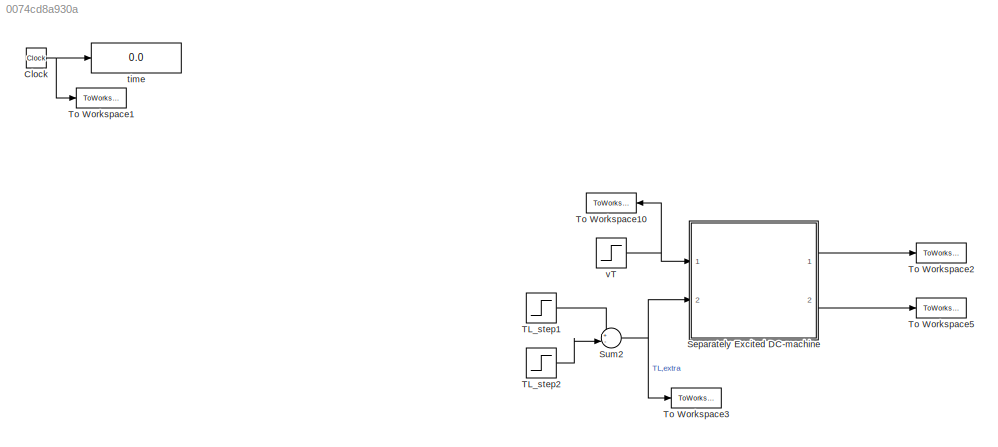
MODEL mdl_0074cd8a930a
KIND model
CONFIG AbsTol = auto
CONFIG EnableMultiTasking = on
CONFIG FixedStep = auto
CONFIG MaxStep = 1e-3
CONFIG MinStep = auto
CONFIG RelTol = 1e-6
CONFIG SampleTimeConstraint = Unconstrained
CONFIG SolverName = ode45
CONFIG StartTime = 0.0
CONFIG StopTime = 10.0
BLOCK [Clock] Clock
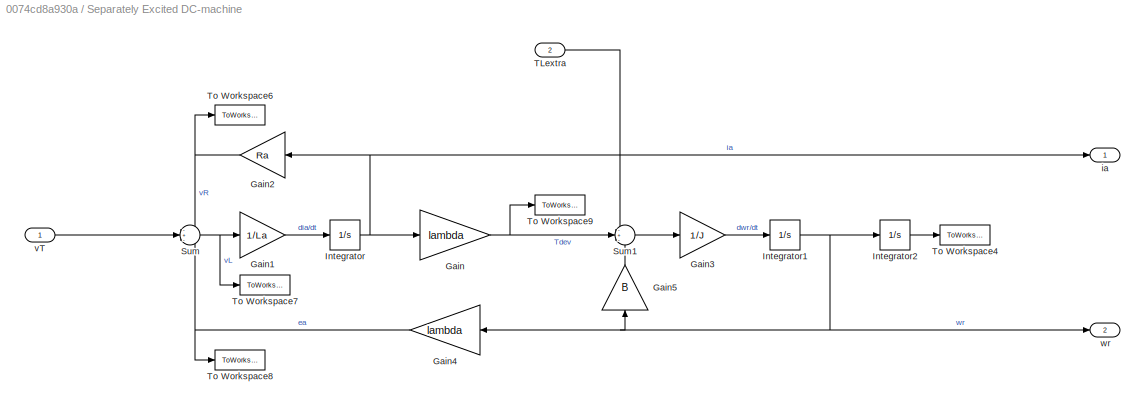
BLOCK [SubSystem] Separately Excited DC-machine
  Ports = [2, 2]
  RequestExecContextInheritance = off
BLOCK [Gain] Separately Excited DC-machine/Gain
  Gain = lambda
BLOCK [Gain] Separately Excited DC-machine/Gain1
  Gain = 1/La
BLOCK [Gain] Separately Excited DC-machine/Gain2
  Gain = Ra
  NameLocation = top
BLOCK [Gain] Separately Excited DC-machine/Gain3
  Gain = 1/J
BLOCK [Gain] Separately Excited DC-machine/Gain4
  Gain = lambda
  NameLocation = top
BLOCK [Gain] Separately Excited DC-machine/Gain5
  Gain = B
  NameLocation = right
BLOCK [Integrator] Separately Excited DC-machine/Integrator
  Ports = [1, 1]
BLOCK [Integrator] Separately Excited DC-machine/Integrator1
  Ports = [1, 1]
BLOCK [Integrator] Separately Excited DC-machine/Integrator2
  Ports = [1, 1]
BLOCK [Sum] Separately Excited DC-machine/Sum
  Inputs = -+-
  Ports = [3, 1]
BLOCK [Sum] Separately Excited DC-machine/Sum1
  Inputs = -+-
  Ports = [3, 1]
BLOCK [Inport] Separately Excited DC-machine/TLextra
  Port = 2
BLOCK [ToWorkspace] Separately Excited DC-machine/To Workspace4
  MaxDataPoints = inf
  Ports = [1]
  SampleTime = -1
  VariableName = thetar
BLOCK [ToWorkspace] Separately Excited DC-machine/To Workspace6
  MaxDataPoints = inf
  Ports = [1]
  SampleTime = -1
  VariableName = vR
BLOCK [ToWorkspace] Separately Excited DC-machine/To Workspace7
  MaxDataPoints = inf
  Ports = [1]
  SampleTime = -1
  VariableName = vL
BLOCK [ToWorkspace] Separately Excited DC-machine/To Workspace8
  MaxDataPoints = inf
  Ports = [1]
  SampleTime = -1
  VariableName = ea
BLOCK [ToWorkspace] Separately Excited DC-machine/To Workspace9
  MaxDataPoints = inf
  Ports = [1]
  SampleTime = -1
  VariableName = Te
BLOCK [Outport] Separately Excited DC-machine/ia
  VectorParamsAs1DForOutWhenUnconnected = off
BLOCK [Inport] Separately Excited DC-machine/vT
BLOCK [Outport] Separately Excited DC-machine/wr
  Port = 2
  VectorParamsAs1DForOutWhenUnconnected = off
BLOCK [Sum] Sum2
  Inputs = +-|
  Ports = [2, 1]
BLOCK [Step] TL_step1
  After = TL_step
  SampleTime = 0
  Time = TL_steptime1
BLOCK [Step] TL_step2
  After = TL_step*2
  SampleTime = 0
  Time = TL_steptime2
BLOCK [ToWorkspace] To Workspace1
  MaxDataPoints = inf
  Ports = [1]
  SampleTime = -1
  VariableName = time
BLOCK [ToWorkspace] To Workspace10
  MaxDataPoints = inf
  NameLocation = top
  Ports = [1]
  SampleTime = -1
  VariableName = vT
BLOCK [ToWorkspace] To Workspace2
  MaxDataPoints = inf
  Ports = [1]
  SampleTime = -1
  VariableName = ia
BLOCK [ToWorkspace] To Workspace3
  MaxDataPoints = inf
  NameLocation = top
  Ports = [1]
  SampleTime = -1
  VariableName = TLextra
BLOCK [ToWorkspace] To Workspace5
  MaxDataPoints = inf
  Ports = [1]
  SampleTime = -1
  VariableName = wr
BLOCK [Display] time
  Decimation = 1
  Ports = [1]
BLOCK [Step] vT
  After = vT_step
  SampleTime = 0
  Time = vT_steptime
NET Clock:1 -> To Workspace1:1, time:1
LINE Separately Excited DC-machine/Gain1:1 -> Separately Excited DC-machine/Integrator:1
NET Separately Excited DC-machine/Gain2:1 -> Separately Excited DC-machine/Sum:1, Separately Excited DC-machine/To Workspace6:1
LINE Separately Excited DC-machine/Gain3:1 -> Separately Excited DC-machine/Integrator1:1
NET Separately Excited DC-machine/Gain4:1 -> Separately Excited DC-machine/Sum:3, Separately Excited DC-machine/To Workspace8:1
LINE Separately Excited DC-machine/Gain5:1 -> Separately Excited DC-machine/Sum1:3
NET Separately Excited DC-machine/Gain:1 -> Separately Excited DC-machine/Sum1:2, Separately Excited DC-machine/To Workspace9:1
NET Separately Excited DC-machine/Integrator1:1 -> Separately Excited DC-machine/Gain4:1, Separately Excited DC-machine/Gain5:1, Separately Excited DC-machine/Integrator2:1, Separately Excited DC-machine/wr:1
LINE Separately Excited DC-machine/Integrator2:1 -> Separately Excited DC-machine/To Workspace4:1
NET Separately Excited DC-machine/Integrator:1 -> Separately Excited DC-machine/Gain2:1, Separately Excited DC-machine/Gain:1, Separately Excited DC-machine/ia:1
LINE Separately Excited DC-machine/Sum1:1 -> Separately Excited DC-machine/Gain3:1
NET Separately Excited DC-machine/Sum:1 -> Separately Excited DC-machine/Gain1:1, Separately Excited DC-machine/To Workspace7:1
LINE Separately Excited DC-machine/TLextra:1 -> Separately Excited DC-machine/Sum1:1
LINE Separately Excited DC-machine/vT:1 -> Separately Excited DC-machine/Sum:2
LINE Separately Excited DC-machine:1 -> To Workspace2:1
LINE Separately Excited DC-machine:2 -> To Workspace5:1
NET Sum2:1 -> Separately Excited DC-machine:2, To Workspace3:1
LINE TL_step1:1 -> Sum2:1
LINE TL_step2:1 -> Sum2:2
NET vT:1 -> Separately Excited DC-machine:1, To Workspace10:1
note: NET lines group one-source signal fan-out (src -> all destinations, sorted); 1:1 wires keep LINE
